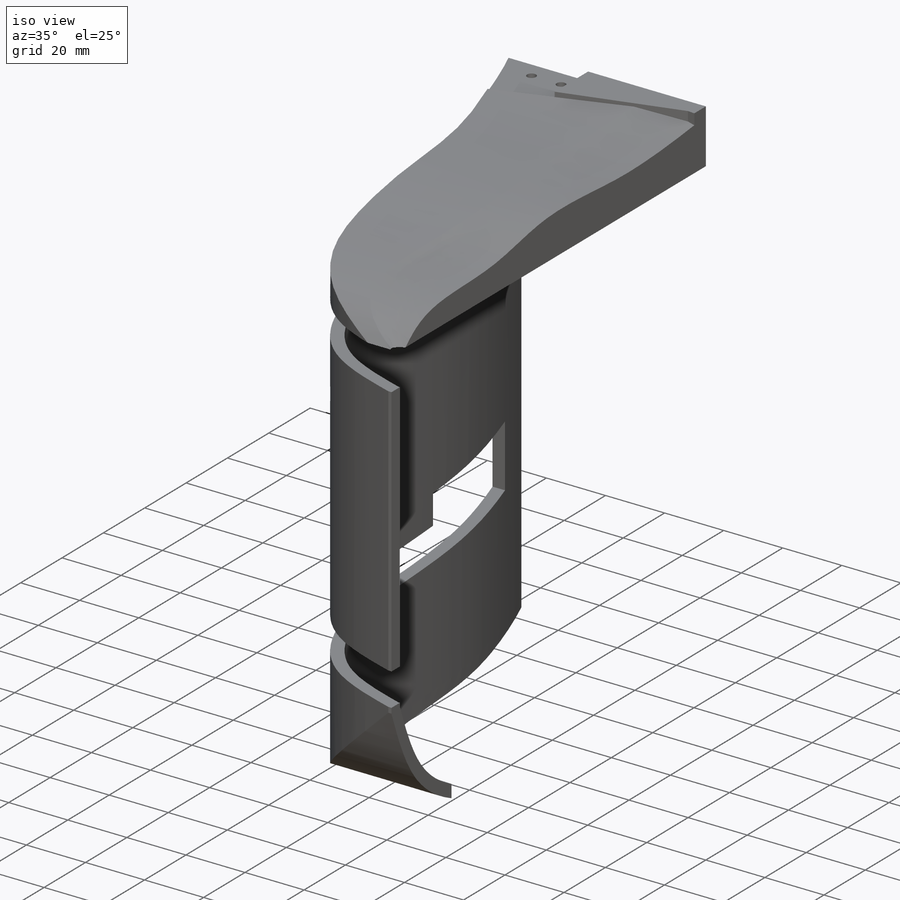
[diagram: iso view]
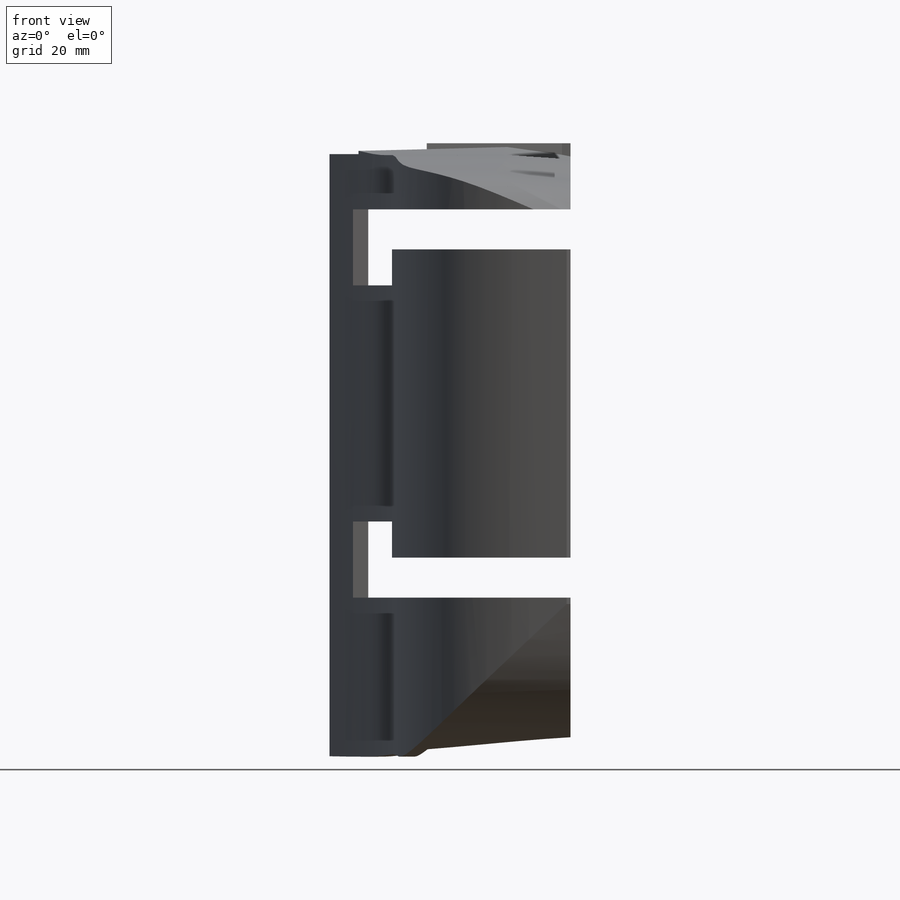
[diagram: front view]
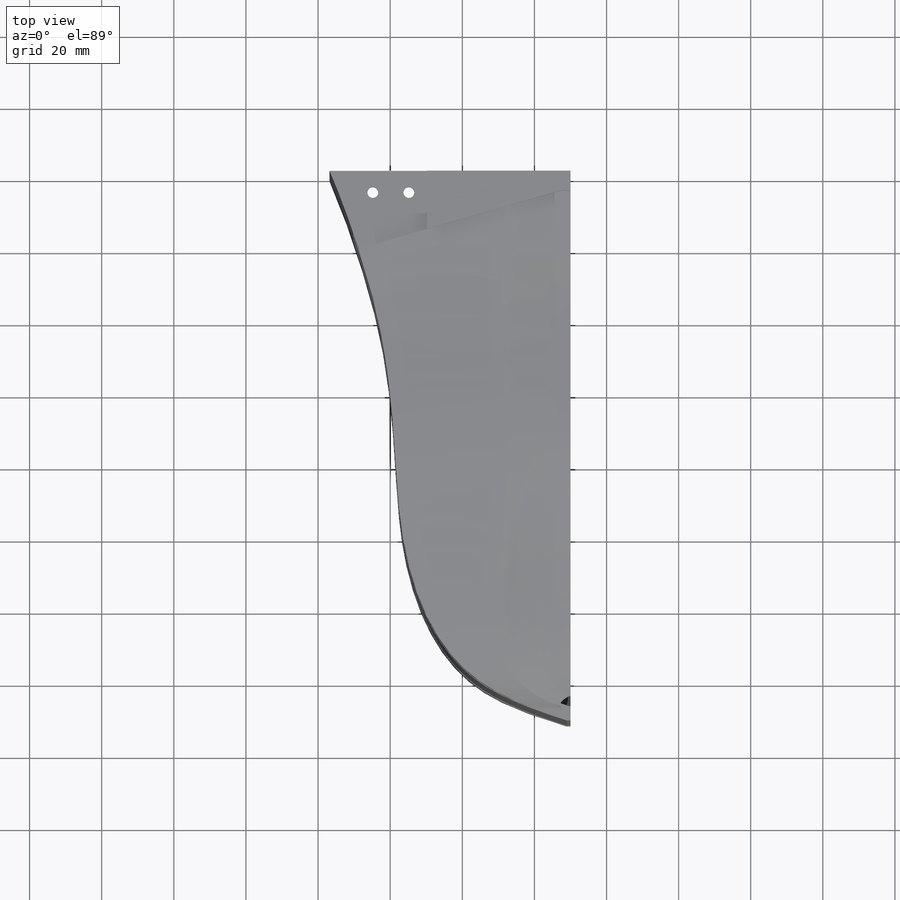
[diagram: top view]
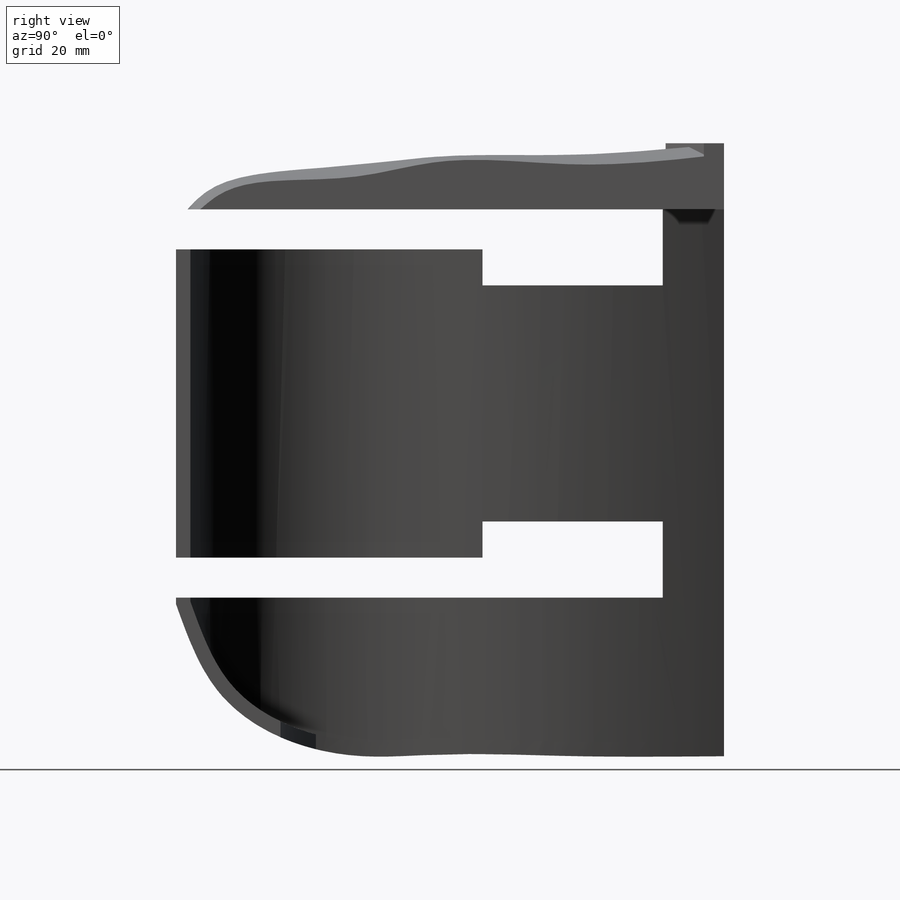
[diagram: right view]
SOLIDWORKS PART (.sldprt)
format: sldprt  version: not decoded by parser v0  size: 395,776 bytes
history: native  units: mm
features: sketch x5, extrude x2, material x1, plane x1, cut_extrude x1, hole x1 (+14 scaffold rows collapsed)
feature tree (25):
  scaffold x14  (default folders/planes/origin — collapsed)
  material  "ABS"
  plane  "Plane1"
  sketch  "Sketch1"  dims[D1=21.0mm D2=21.0mm D3=6.0mm]
  cut_extrude  "Extrude1"  Depth=3mm
  sketch  "Sketch4"
  extrude  "Extrude3"  [1 undecoded]
  hole  "Ø3.0 (3) Diameter Hole1"  Diameter=3mm Depth=10mm
  sketch  "3DSketch1"  dims[c1.D1=~6.613813mm c1.D4=6.0mm c1.D2=10.0mm c1.D3=6.0mm c2.D1=~13.416408mm]
  sketch  "Sketch2"  dims[hole-wizard template sketch: 49 standard entries collapsed; hole parameters kept: c15.Drill Angle=180.0deg]
  sketch  "Sketch15"
  extrude  "Extrude12"  Depth=5mm
decode coverage: 6 of 9 modeling features carry decoded parameters
note: ~ marks probable driven/reference dimensions
note: 1 parameter value undecoded
note: suppression state not decoded; provenance and decode notes live in map.json
